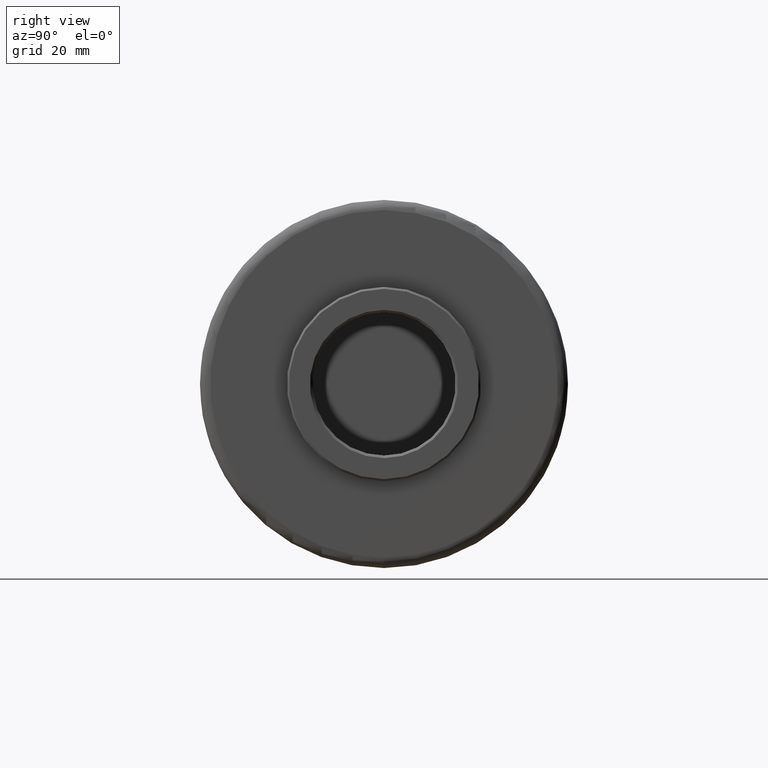
[diagram: clean part render]
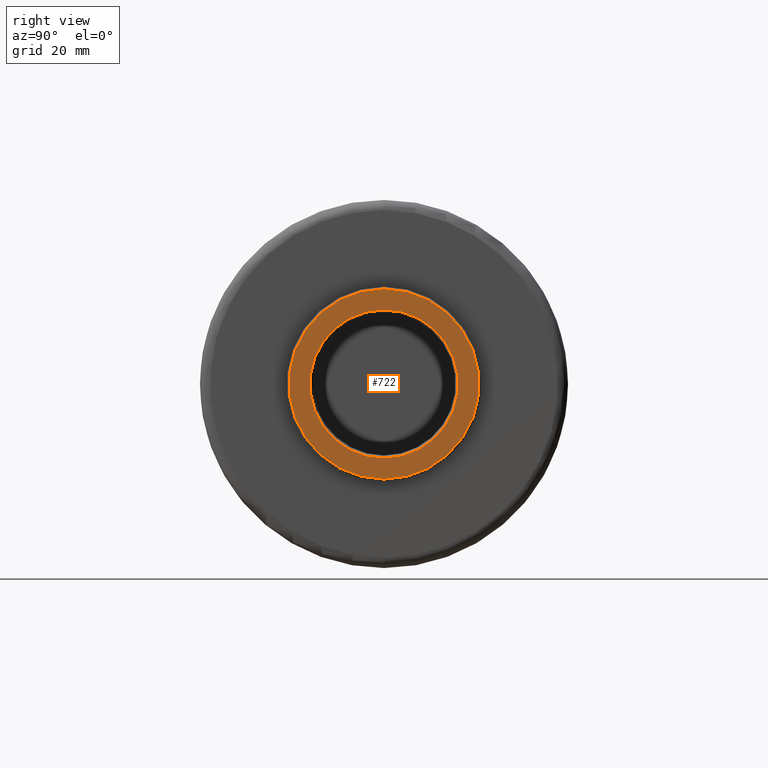
[diagram: same view with one face highlighted and labeled with its STEP entity id]
A machine part, right view. The second image highlights one B-rep face of the part: STEP entity #722.
In plain terms, the highlighted planar face has unit normal (1, -0, 0).
Its self-contained STEP definition (entity closure, byte-faithful):
#25 = CARTESIAN_POINT ( 'NONE',  ( 100.5000000000000000, -18.82320000000000300, 18.82320000000000300 ) ) ;
#44 = EDGE_CURVE ( 'NONE', #996, #116, #466, .T. ) ;
#54 = DIRECTION ( 'NONE',  ( -1.000000000000000000, 0.0000000000000000000, 0.0000000000000000000 ) ) ;
#86 = CIRCLE ( 'NONE', #1293, 18.59999999999997300 ) ;
#99 = CARTESIAN_POINT ( 'NONE',  ( 100.5000000000000000, 1.775737858763658700E-015, 14.49999999999997200 ) ) ;
#116 = VERTEX_POINT ( 'NONE', #99 ) ;
#131 = FACE_BOUND ( 'NONE', #912, .T. ) ;
#143 = DIRECTION ( 'NONE',  ( 0.0000000000000000000, 0.0000000000000000000, -1.000000000000000000 ) ) ;
#149 = AXIS2_PLACEMENT_3D ( 'NONE', #883, #249, #993 ) ;
#205 = DIRECTION ( 'NONE',  ( -1.000000000000000000, 0.0000000000000000000, -0.0000000000000000000 ) ) ;
#249 = DIRECTION ( 'NONE',  ( -1.000000000000000000, 0.0000000000000000000, -0.0000000000000000000 ) ) ;
#262 = ORIENTED_EDGE ( 'NONE', *, *, #1038, .F. ) ;
#307 = CARTESIAN_POINT ( 'NONE',  ( 100.5000000000000300, 2.302335982397022300E-015, -18.59999999999997300 ) ) ;
#336 = EDGE_CURVE ( 'NONE', #116, #996, #661, .T. ) ;
#369 = CARTESIAN_POINT ( 'NONE',  ( 100.5000000000000000, 0.0000000000000000000, -14.49999999999997200 ) ) ;
#394 = AXIS2_PLACEMENT_3D ( 'NONE', #844, #205, #952 ) ;
#411 = ORIENTED_EDGE ( 'NONE', *, *, #1087, .F. ) ;
#415 = AXIS2_PLACEMENT_3D ( 'NONE', #714, #54, #814 ) ;
#466 = CIRCLE ( 'NONE', #149, 14.49999999999997200 ) ;
#495 = CARTESIAN_POINT ( 'NONE',  ( 100.5000000000000300, 0.0000000000000000000, 0.0000000000000000000 ) ) ;
#603 = DIRECTION ( 'NONE',  ( 0.0000000000000000000, 0.0000000000000000000, 1.000000000000000000 ) ) ;
#631 = EDGE_LOOP ( 'NONE', ( #262, #411 ) ) ;
#661 = CIRCLE ( 'NONE', #394, 14.49999999999997200 ) ;
#666 = VERTEX_POINT ( 'NONE', #1176 ) ;
#714 = CARTESIAN_POINT ( 'NONE',  ( 100.5000000000000300, 0.0000000000000000000, 0.0000000000000000000 ) ) ;
#722 = ADVANCED_FACE ( 'NONE', ( #131, #966 ), #1178, .T. ) ;
#792 = DIRECTION ( 'NONE',  ( 1.000000000000000000, -0.0000000000000000000, 0.0000000000000000000 ) ) ;
#798 = ORIENTED_EDGE ( 'NONE', *, *, #44, .T. ) ;
#814 = DIRECTION ( 'NONE',  ( 0.0000000000000000000, 0.0000000000000000000, 1.000000000000000000 ) ) ;
#844 = CARTESIAN_POINT ( 'NONE',  ( 100.5000000000000000, 0.0000000000000000000, 0.0000000000000000000 ) ) ;
#867 = VERTEX_POINT ( 'NONE', #307 ) ;
#883 = CARTESIAN_POINT ( 'NONE',  ( 100.5000000000000000, 0.0000000000000000000, 0.0000000000000000000 ) ) ;
#912 = EDGE_LOOP ( 'NONE', ( #798, #940 ) ) ;
#940 = ORIENTED_EDGE ( 'NONE', *, *, #336, .T. ) ;
#952 = DIRECTION ( 'NONE',  ( 0.0000000000000000000, 0.0000000000000000000, -1.000000000000000000 ) ) ;
#966 = FACE_OUTER_BOUND ( 'NONE', #631, .T. ) ;
#993 = DIRECTION ( 'NONE',  ( 0.0000000000000000000, 0.0000000000000000000, -1.000000000000000000 ) ) ;
#996 = VERTEX_POINT ( 'NONE', #369 ) ;
#1038 = EDGE_CURVE ( 'NONE', #666, #867, #86, .T. ) ;
#1087 = EDGE_CURVE ( 'NONE', #867, #666, #1162, .T. ) ;
#1162 = CIRCLE ( 'NONE', #415, 18.59999999999997300 ) ;
#1176 = CARTESIAN_POINT ( 'NONE',  ( 100.5000000000000300, 0.0000000000000000000, 18.59999999999997300 ) ) ;
#1178 = PLANE ( 'NONE',  #1331 ) ;
#1214 = DIRECTION ( 'NONE',  ( -1.000000000000000000, 0.0000000000000000000, 0.0000000000000000000 ) ) ;
#1293 = AXIS2_PLACEMENT_3D ( 'NONE', #495, #1214, #603 ) ;
#1331 = AXIS2_PLACEMENT_3D ( 'NONE', #25, #792, #143 ) ;